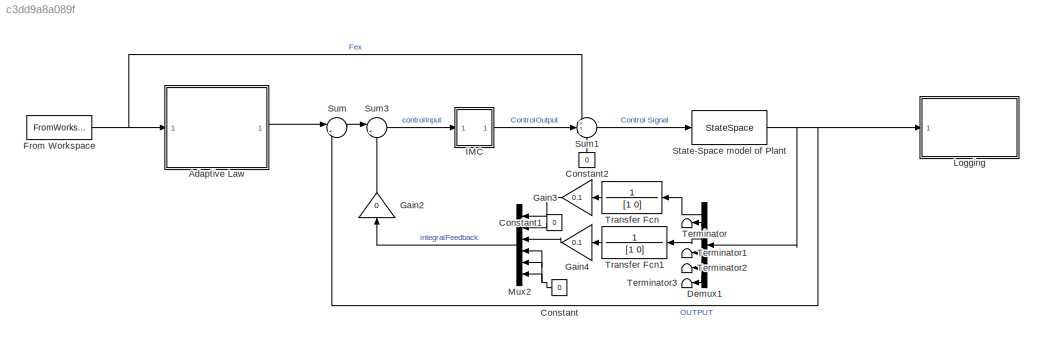
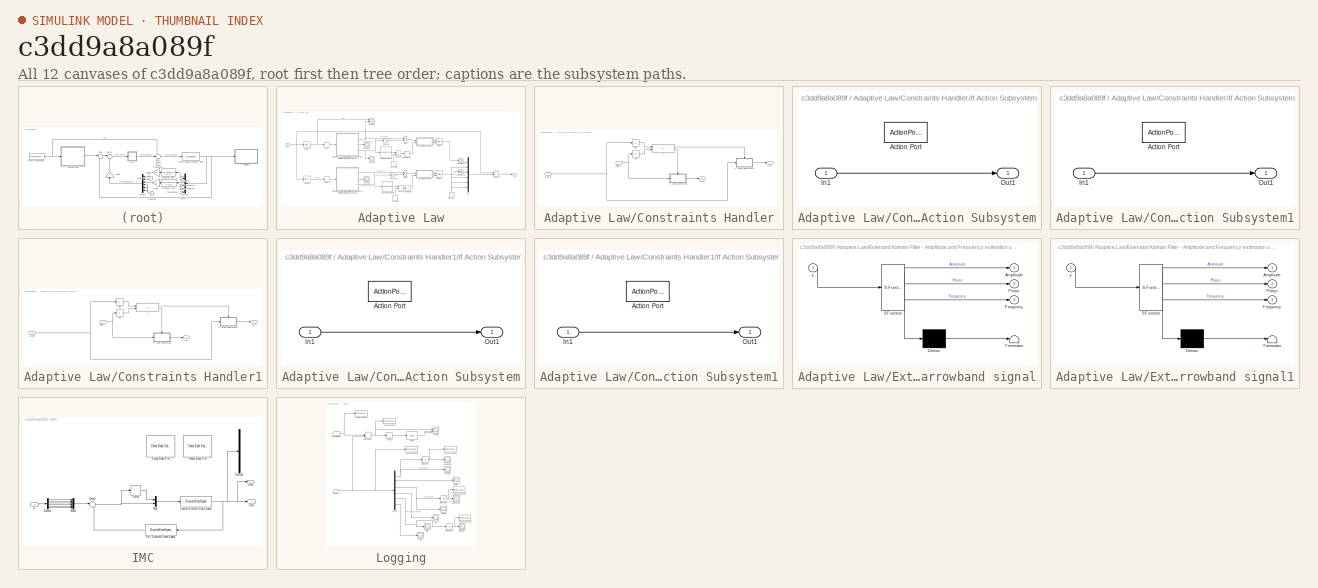
[diagram: thumbnail index - all 12 canvases of the model, root first then tree order]
MODEL slx_c3dd9a8a089f
KIND model
CONFIG AbsTol = auto
CONFIG EnableMultiTasking = off
CONFIG FixedStep = Ts
CONFIG MaxStep = auto
CONFIG MinStep = auto
CONFIG RelTol = 1e-3
CONFIG SampleTimeConstraint = Unconstrained
CONFIG Solver = ode4
CONFIG SolverName = ode4
CONFIG StartTime = 0.0
CONFIG StopTime = 700
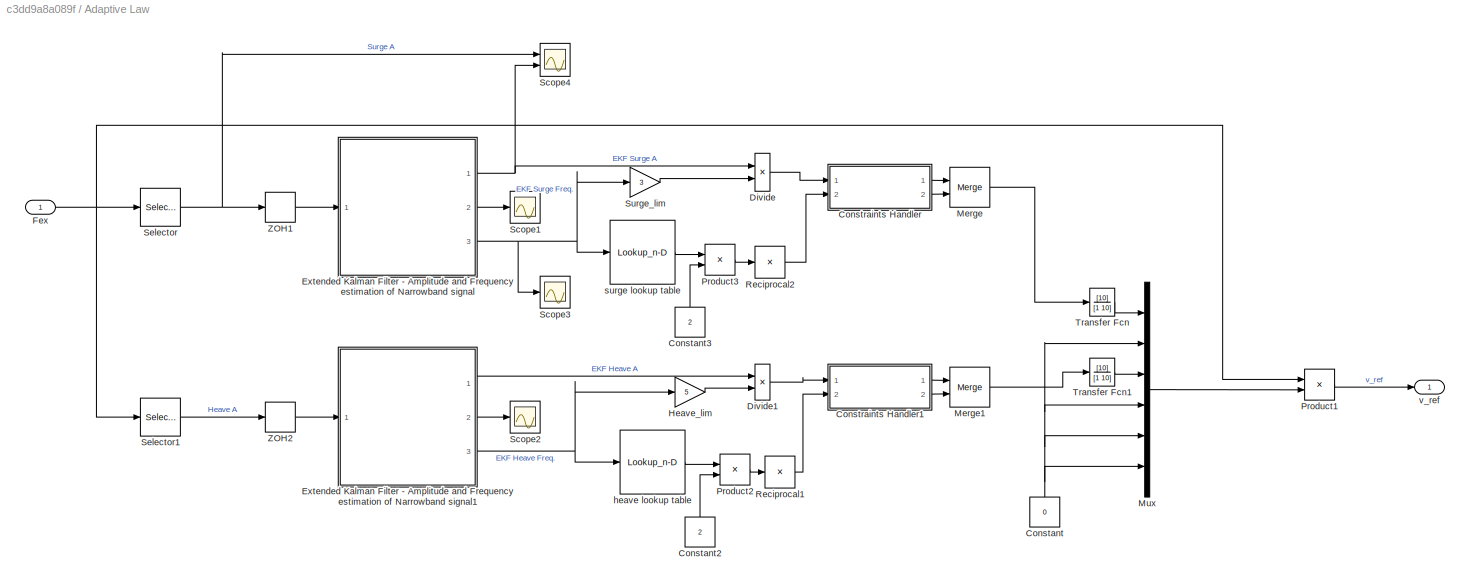
BLOCK [SubSystem] Adaptive Law
  Ports = [1, 1]
  RequestExecContextInheritance = off
BLOCK [Constant] Adaptive Law/Constant
  Value = 0
BLOCK [Constant] Adaptive Law/Constant2
  Value = 2
BLOCK [Constant] Adaptive Law/Constant3
  Value = 2
BLOCK [SubSystem] Adaptive Law/Constraints Handler
  Ports = [2, 2]
  RequestExecContextInheritance = off
BLOCK [Inport] Adaptive Law/Constraints Handler/1//2B(w)
  IconDisplay = Port number
  Port = 2
BLOCK [Abs] Adaptive Law/Constraints Handler/Abs
  SaturateOnIntegerOverflow = off
BLOCK [Abs] Adaptive Law/Constraints Handler/Abs1
  SaturateOnIntegerOverflow = off
BLOCK [If] Adaptive Law/Constraints Handler/If
  IfExpression = u2>u1
  NumInputs = 2
  Ports = [2, 2]
BLOCK [SubSystem] Adaptive Law/Constraints Handler/If Action Subsystem
  Ports = [1, 1, 0, 0, 0, 0, 0, 1]
  RequestExecContextInheritance = off
  TreatAsAtomicUnit = on
BLOCK [ActionPort] Adaptive Law/Constraints Handler/If Action Subsystem/Action Port
  ActionType = else
BLOCK [Inport] Adaptive Law/Constraints Handler/If Action Subsystem/In1
  IconDisplay = Port number
BLOCK [Outport] Adaptive Law/Constraints Handler/If Action Subsystem/Out1
  IconDisplay = Port number
BLOCK [SubSystem] Adaptive Law/Constraints Handler/If Action Subsystem1
  Ports = [1, 1, 0, 0, 0, 0, 0, 1]
  RequestExecContextInheritance = off
  TreatAsAtomicUnit = on
BLOCK [ActionPort] Adaptive Law/Constraints Handler/If Action Subsystem1/Action Port
  ActionType = then
BLOCK [Inport] Adaptive Law/Constraints Handler/If Action Subsystem1/In1
  IconDisplay = Port number
BLOCK [Outport] Adaptive Law/Constraints Handler/If Action Subsystem1/Out1
  IconDisplay = Port number
BLOCK [Outport] Adaptive Law/Constraints Handler/Out1
  IconDisplay = Port number
BLOCK [Outport] Adaptive Law/Constraints Handler/Out2
  IconDisplay = Port number
  Port = 2
BLOCK [Inport] Adaptive Law/Constraints Handler/wXlim//A
  IconDisplay = Port number
BLOCK [SubSystem] Adaptive Law/Constraints Handler1
  Ports = [2, 2]
  RequestExecContextInheritance = off
BLOCK [Inport] Adaptive Law/Constraints Handler1/1//2B(w)
  IconDisplay = Port number
  Port = 2
BLOCK [Abs] Adaptive Law/Constraints Handler1/Abs
  SaturateOnIntegerOverflow = off
BLOCK [Abs] Adaptive Law/Constraints Handler1/Abs1
  SaturateOnIntegerOverflow = off
BLOCK [If] Adaptive Law/Constraints Handler1/If
  IfExpression = u2>u1
  NumInputs = 2
  Ports = [2, 2]
BLOCK [SubSystem] Adaptive Law/Constraints Handler1/If Action Subsystem
  Ports = [1, 1, 0, 0, 0, 0, 0, 1]
  RequestExecContextInheritance = off
  TreatAsAtomicUnit = on
BLOCK [ActionPort] Adaptive Law/Constraints Handler1/If Action Subsystem/Action Port
  ActionType = else
BLOCK [Inport] Adaptive Law/Constraints Handler1/If Action Subsystem/In1
  IconDisplay = Port number
BLOCK [Outport] Adaptive Law/Constraints Handler1/If Action Subsystem/Out1
  IconDisplay = Port number
BLOCK [SubSystem] Adaptive Law/Constraints Handler1/If Action Subsystem1
  Ports = [1, 1, 0, 0, 0, 0, 0, 1]
  RequestExecContextInheritance = off
  TreatAsAtomicUnit = on
BLOCK [ActionPort] Adaptive Law/Constraints Handler1/If Action Subsystem1/Action Port
  ActionType = then
BLOCK [Inport] Adaptive Law/Constraints Handler1/If Action Subsystem1/In1
  IconDisplay = Port number
BLOCK [Outport] Adaptive Law/Constraints Handler1/If Action Subsystem1/Out1
  IconDisplay = Port number
BLOCK [Outport] Adaptive Law/Constraints Handler1/Out1
  IconDisplay = Port number
BLOCK [Outport] Adaptive Law/Constraints Handler1/Out2
  IconDisplay = Port number
  Port = 2
BLOCK [Inport] Adaptive Law/Constraints Handler1/wXlim//A
  IconDisplay = Port number
BLOCK [Product] Adaptive Law/Divide
  InputSameDT = off
  Inputs = /*
  OutDataTypeStr = Inherit: Inherit via internal rule
  Ports = [2, 1]
  RndMeth = Floor
  SaturateOnIntegerOverflow = off
BLOCK [Product] Adaptive Law/Divide1
  InputSameDT = off
  Inputs = /*
  OutDataTypeStr = Inherit: Inherit via internal rule
  Ports = [2, 1]
  RndMeth = Floor
  SaturateOnIntegerOverflow = off
BLOCK [SubSystem] Adaptive Law/Extended Kalman Filter - Amplitude and Frequency estimation of Narrowband signal
  ErrorFcn = Stateflow.Translate.translate
  PermitHierarchicalResolution = ExplicitOnly
  Ports = [1, 3]
  RequestExecContextInheritance = off
  SFBlockType = MATLAB Function
  TreatAsAtomicUnit = on
BLOCK [Demux] Adaptive Law/Extended Kalman Filter - Amplitude and Frequency estimation of Narrowband signal/ Demux 
  Outputs = 1
  Ports = [1, 1]
BLOCK [S-Function] Adaptive Law/Extended Kalman Filter - Amplitude and Frequency estimation of Narrowband signal/ SFunction 
  EnableBusSupport = on
  FunctionName = sf_sfun
  PortCounts = [1 4]
  Ports = [1, 4]
  SFcnIsStateOwnerBlock = off
  SFunctionDeploymentMode = off
  Tag = Stateflow S-Function position_control_model 1
BLOCK [Terminator] Adaptive Law/Extended Kalman Filter - Amplitude and Frequency estimation of Narrowband signal/ Terminator 
BLOCK [Outport] Adaptive Law/Extended Kalman Filter - Amplitude and Frequency estimation of Narrowband signal/Amplitude
  IconDisplay = Port number
BLOCK [Outport] Adaptive Law/Extended Kalman Filter - Amplitude and Frequency estimation of Narrowband signal/Frequency
  IconDisplay = Port number
  Port = 3
BLOCK [Outport] Adaptive Law/Extended Kalman Filter - Amplitude and Frequency estimation of Narrowband signal/Phase
  IconDisplay = Port number
  Port = 2
BLOCK [Inport] Adaptive Law/Extended Kalman Filter - Amplitude and Frequency estimation of Narrowband signal/y
  IconDisplay = Port number
BLOCK [SubSystem] Adaptive Law/Extended Kalman Filter - Amplitude and Frequency estimation of Narrowband signal1
  ErrorFcn = Stateflow.Translate.translate
  PermitHierarchicalResolution = ExplicitOnly
  Ports = [1, 3]
  RequestExecContextInheritance = off
  SFBlockType = MATLAB Function
  TreatAsAtomicUnit = on
BLOCK [Demux] Adaptive Law/Extended Kalman Filter - Amplitude and Frequency estimation of Narrowband signal1/ Demux 
  Outputs = 1
  Ports = [1, 1]
BLOCK [S-Function] Adaptive Law/Extended Kalman Filter - Amplitude and Frequency estimation of Narrowband signal1/ SFunction 
  EnableBusSupport = on
  FunctionName = sf_sfun
  PortCounts = [1 4]
  Ports = [1, 4]
  SFcnIsStateOwnerBlock = off
  SFunctionDeploymentMode = off
  Tag = Stateflow S-Function position_control_model 2
BLOCK [Terminator] Adaptive Law/Extended Kalman Filter - Amplitude and Frequency estimation of Narrowband signal1/ Terminator 
BLOCK [Outport] Adaptive Law/Extended Kalman Filter - Amplitude and Frequency estimation of Narrowband signal1/Amplitude
  IconDisplay = Port number
BLOCK [Outport] Adaptive Law/Extended Kalman Filter - Amplitude and Frequency estimation of Narrowband signal1/Frequency
  IconDisplay = Port number
  Port = 3
BLOCK [Outport] Adaptive Law/Extended Kalman Filter - Amplitude and Frequency estimation of Narrowband signal1/Phase
  IconDisplay = Port number
  Port = 2
BLOCK [Inport] Adaptive Law/Extended Kalman Filter - Amplitude and Frequency estimation of Narrowband signal1/y
  IconDisplay = Port number
BLOCK [Inport] Adaptive Law/Fex
  IconDisplay = Port number
BLOCK [Gain] Adaptive Law/Heave_lim
  Gain = 5
  OutDataTypeStr = Inherit: Inherit via internal rule
  ParamDataTypeStr = Inherit: Inherit via internal rule
  SaturateOnIntegerOverflow = off
BLOCK [Merge] Adaptive Law/Merge
  Ports = [2, 1]
BLOCK [Merge] Adaptive Law/Merge1
  Ports = [2, 1]
BLOCK [Mux] Adaptive Law/Mux
  DisplayOption = bar
  Inputs = 6
  Ports = [6, 1]
BLOCK [Product] Adaptive Law/Product1
  InputSameDT = off
  OutDataTypeStr = Inherit: Inherit via internal rule
  Ports = [2, 1]
  RndMeth = Floor
  SaturateOnIntegerOverflow = off
BLOCK [Product] Adaptive Law/Product2
  InputSameDT = off
  OutDataTypeStr = Inherit: Inherit via internal rule
  Ports = [2, 1]
  RndMeth = Floor
  SaturateOnIntegerOverflow = off
BLOCK [Product] Adaptive Law/Product3
  InputSameDT = off
  OutDataTypeStr = Inherit: Inherit via internal rule
  Ports = [2, 1]
  RndMeth = Floor
  SaturateOnIntegerOverflow = off
BLOCK [Product] Adaptive Law/Reciprocal1
  InputSameDT = off
  Inputs = /
  OutDataTypeStr = Inherit: Inherit via internal rule
  Ports = [1, 1]
  RndMeth = Floor
  SaturateOnIntegerOverflow = off
BLOCK [Product] Adaptive Law/Reciprocal2
  InputSameDT = off
  Inputs = /
  OutDataTypeStr = Inherit: Inherit via internal rule
  Ports = [1, 1]
  RndMeth = Floor
  SaturateOnIntegerOverflow = off
BLOCK [Scope] Adaptive Law/Scope1
  Floating = off
  NumInputPorts = 1
  Ports = [1]
  ScopeSpecificationString = Simulink.scopes.TimeScopeBlockCfg('CurrentConfiguration', extmgr.ConfigurationSet(extmgr.Configuration('Core','General UI',true),extmgr.Configuration('Core','Source UI',true),extmgr.Configuration('Sources','WiredSimulink',true,'DataLoggingVariableName','ScopeData1','DataLoggingSaveFormat','StructureWithTime','DataLoggingDecimation','1','DataLoggingDecimateData',true),extmgr.Configuration('Visuals'...<+1864ch>
BLOCK [Scope] Adaptive Law/Scope2
  Floating = off
  NumInputPorts = 1
  Ports = [1]
  ScopeSpecificationString = Simulink.scopes.TimeScopeBlockCfg('CurrentConfiguration', extmgr.ConfigurationSet(extmgr.Configuration('Core','General UI',true),extmgr.Configuration('Core','Source UI',true),extmgr.Configuration('Sources','WiredSimulink',true,'DataLoggingVariableName','ScopeData1','DataLoggingSaveFormat','StructureWithTime','DataLoggingDecimation','1','DataLoggingDecimateData',true),extmgr.Configuration('Visuals'...<+1870ch>
BLOCK [Scope] Adaptive Law/Scope3
  Floating = off
  NumInputPorts = 1
  Ports = [1]
  ScopeSpecificationString = Simulink.scopes.TimeScopeBlockCfg('CurrentConfiguration', extmgr.ConfigurationSet(extmgr.Configuration('Core','General UI',true),extmgr.Configuration('Core','Source UI',true),extmgr.Configuration('Sources','WiredSimulink',true,'DataLoggingVariableName','ScopeData1','DataLoggingSaveFormat','StructureWithTime','DataLoggingDecimation','1','DataLoggingDecimateData',true),extmgr.Configuration('Visuals'...<+1747ch>
BLOCK [Scope] Adaptive Law/Scope4
  Floating = off
  NumInputPorts = 2
  Ports = [2]
  ScopeSpecificationString = Simulink.scopes.TimeScopeBlockCfg('CurrentConfiguration', extmgr.ConfigurationSet(extmgr.Configuration('Core','General UI',true),extmgr.Configuration('Core','Source UI',true),extmgr.Configuration('Sources','WiredSimulink',true,'DataLoggingVariableName','ScopeData2','DataLoggingSaveFormat','StructureWithTime','DataLoggingDecimation','1','DataLoggingDecimateData',true),extmgr.Configuration('Visuals'...<+1803ch>
BLOCK [Selector] Adaptive Law/Selector
  IndexOptions = Index vector (dialog)
  Indices = 1
  InputPortWidth = 6
  OutputSizes = 1
  Ports = [1, 1]
BLOCK [Selector] Adaptive Law/Selector1
  IndexOptions = Index vector (dialog)
  Indices = 3
  InputPortWidth = 6
  OutputSizes = 1
  Ports = [1, 1]
BLOCK [Gain] Adaptive Law/Surge_lim
  Gain = 3
  OutDataTypeStr = Inherit: Inherit via internal rule
  ParamDataTypeStr = Inherit: Inherit via internal rule
  SaturateOnIntegerOverflow = off
BLOCK [TransferFcn] Adaptive Law/Transfer Fcn
  Denominator = [1 10]
  Numerator = [10]
BLOCK [TransferFcn] Adaptive Law/Transfer Fcn1
  Denominator = [1 10]
  Numerator = [10]
BLOCK [ZeroOrderHold] Adaptive Law/ZOH1
  SampleTime = Ts
BLOCK [ZeroOrderHold] Adaptive Law/ZOH2
  SampleTime = Ts
BLOCK [Lookup_n-D] Adaptive Law/heave lookup table
  BreakpointsForDimension1 = heave.freq
  InternalRulePriority = Speed
  NumberOfTableDimensions = 1
  Ports = [1, 1]
  RndMeth = Simplest
  Table = heave.amp
BLOCK [Lookup_n-D] Adaptive Law/surge lookup table
  BreakpointsForDimension1 = surge.freq
  InternalRulePriority = Speed
  NumberOfTableDimensions = 1
  Ports = [1, 1]
  RndMeth = Simplest
  Table = surge.amp
BLOCK [Outport] Adaptive Law/v_ref
  IconDisplay = Port number
BLOCK [Constant] Constant
  Value = 0
BLOCK [Constant] Constant1
  Value = 0
BLOCK [Constant] Constant2
  Value = 0
BLOCK [Demux] Demux1
  DisplayOption = bar
  Outputs = 6
  Ports = [1, 6]
BLOCK [FromWorkspace] From Workspace
  SampleTime = 0
  VariableName = fex
  ZeroCross = on
BLOCK [Gain] Gain2
  Gain = 0
  OutDataTypeStr = Inherit: Inherit via internal rule
  ParamDataTypeStr = Inherit: Inherit via internal rule
  SaturateOnIntegerOverflow = off
BLOCK [Gain] Gain3
  Gain = 0.1
  OutDataTypeStr = Inherit: Inherit via internal rule
  ParamDataTypeStr = Inherit: Inherit via internal rule
  SaturateOnIntegerOverflow = off
BLOCK [Gain] Gain4
  Gain = 0.1
  OutDataTypeStr = Inherit: Inherit via internal rule
  ParamDataTypeStr = Inherit: Inherit via internal rule
  SaturateOnIntegerOverflow = off
BLOCK [SubSystem] IMC
  Ports = [1, 1]
  RequestExecContextInheritance = off
BLOCK [Delay] IMC/Delay
  DelayLength = 1
  InitialCondition = 0
  InputPortMap = u0
  Ports = [1, 1]
BLOCK [Demux] IMC/Demux
  DisplayOption = bar
  Outputs = 6
  Ports = [1, 6]
BLOCK [Demux] IMC/Demux1
  DisplayOption = bar
  Outputs = 6
  Ports = [1, 6]
BLOCK [DiscreteStateSpace] IMC/Full Discrete State-Space
  A = SS_discrete.A
  B = SS_discrete.B
  C = SS_discrete.C
  D = SS_discrete.D
  SampleTime = -1
BLOCK [Goto] IMC/Goto
  TagVisibility = global
BLOCK [Reference] IMC/Heave Bode Plot  REF=slctrlblks/Model Verification/Check Bode 
Characteristics
  InstantiateOnLoad = on
  Ports = []
  SourceBlock = slctrlblks/Model Verification/Check Bode \nCharacteristics
  SourceProductBaseCode = SD
  SourceProductName = Simulink Control Design
  SourceType = Checks_Bode
BLOCK [DiscreteStateSpace] IMC/Inverse Discrete State-Space
  A = SS_inverse.A
  B = SS_inverse.B
  C = SS_inverse.C
  D = SS_inverse.D
  SampleTime = -1
BLOCK [Mux] IMC/Mux
  DisplayOption = bar
  Inputs = 2
  Ports = [2, 1]
BLOCK [Mux] IMC/Mux1
  DisplayOption = bar
  Inputs = 6
  Ports = [6, 1]
BLOCK [Outport] IMC/Out2
  IconDisplay = Port number
BLOCK [Sum] IMC/Sum3
  IconShape = round
  InputSameDT = off
  Inputs = |++
  OutDataTypeStr = Inherit: Inherit via internal rule
  Ports = [2, 1]
  SaturateOnIntegerOverflow = off
BLOCK [Reference] IMC/Surge Bode Plot  REF=slctrlblks/Model Verification/Check Bode 
Characteristics
  InstantiateOnLoad = on
  Ports = []
  SourceBlock = slctrlblks/Model Verification/Check Bode \nCharacteristics
  SourceProductBaseCode = SD
  SourceProductName = Simulink Control Design
  SourceType = Checks_Bode
BLOCK [Inport] IMC/u
  IconDisplay = Port number
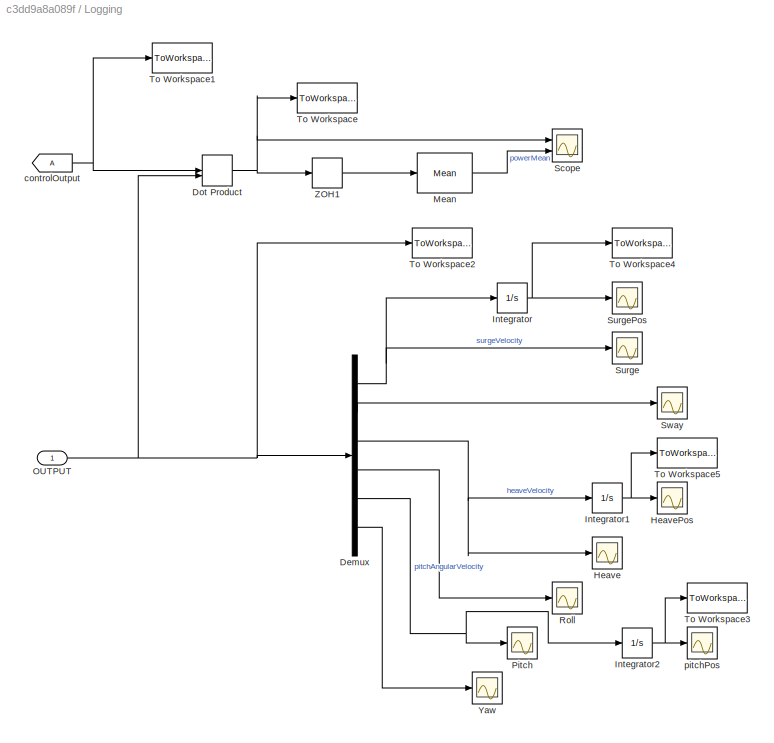
BLOCK [SubSystem] Logging
  Ports = [1]
  RequestExecContextInheritance = off
BLOCK [Demux] Logging/Demux
  DisplayOption = bar
  Outputs = 6
  Ports = [1, 6]
BLOCK [DotProduct] Logging/Dot Product
  OutDataTypeStr = Inherit: Inherit via internal rule
BLOCK [Scope] Logging/Heave
  Floating = off
  NumInputPorts = 1
  Ports = [1]
  ScopeSpecificationString = Simulink.scopes.TimeScopeBlockCfg('CurrentConfiguration', extmgr.ConfigurationSet(extmgr.Configuration('Core','General UI',true),extmgr.Configuration('Core','Source UI',true),extmgr.Configuration('Sources','WiredSimulink',true,'DataLoggingVariableName','ScopeData1'),extmgr.Configuration('Visuals','Time Domain',true,'SerializedDisplays',{struct('MinYLimReal','-2.78159','MaxYLimReal','2.11477','YLab...<+1453ch>
BLOCK [Scope] Logging/HeavePos
  Floating = off
  NumInputPorts = 1
  Ports = [1]
  ScopeSpecificationString = Simulink.scopes.TimeScopeBlockCfg('CurrentConfiguration', extmgr.ConfigurationSet(extmgr.Configuration('Core','General UI',true),extmgr.Configuration('Core','Source UI',true),extmgr.Configuration('Sources','WiredSimulink',true,'DataLoggingVariableName','ScopeData1'),extmgr.Configuration('Visuals','Time Domain',true,'SerializedDisplays',{struct('MinYLimReal','-11.39818','MaxYLimReal','6.80474','YLa...<+1453ch>
BLOCK [Integrator] Logging/Integrator
  Ports = [1, 1]
BLOCK [Integrator] Logging/Integrator1
  Ports = [1, 1]
BLOCK [Integrator] Logging/Integrator2
  Ports = [1, 1]
BLOCK [Reference] Logging/Mean  REF=dspstat3/Mean
  Ports = [1, 1]
  SourceBlock = dspstat3/Mean
  SourceProductBaseCode = DS
  SourceProductName = DSP System Toolbox
  SourceType = Mean
  UserDataPersistent = on
BLOCK [Inport] Logging/OUTPUT
  IconDisplay = Port number
BLOCK [Scope] Logging/Pitch
  Floating = off
  NumInputPorts = 1
  Ports = [1]
  ScopeSpecificationString = Simulink.scopes.TimeScopeBlockCfg('CurrentConfiguration', extmgr.ConfigurationSet(extmgr.Configuration('Core','General UI',true),extmgr.Configuration('Core','Source UI',true),extmgr.Configuration('Sources','WiredSimulink',true,'DataLoggingVariableName','ScopeData2'),extmgr.Configuration('Visuals','Time Domain',true,'SerializedDisplays',{struct('MinYLimReal','-0.00595','MaxYLimReal','0.00682','YLab...<+1423ch>
BLOCK [Scope] Logging/Roll
  Floating = off
  NumInputPorts = 1
  Ports = [1]
  ScopeSpecificationString = Simulink.scopes.TimeScopeBlockCfg('CurrentConfiguration', extmgr.ConfigurationSet(extmgr.Configuration('Core','General UI',true),extmgr.Configuration('Core','Source UI',true),extmgr.Configuration('Sources','WiredSimulink',true,'DataLoggingVariableName','ScopeData2'),extmgr.Configuration('Visuals','Time Domain',true,'SerializedDisplays',{struct('MinYLimReal','-0.01689','MaxYLimReal','0.01142','YLab...<+1385ch>
BLOCK [Scope] Logging/Scope
  Floating = off
  NumInputPorts = 2
  Ports = [2]
  ScopeSpecificationString = Simulink.scopes.TimeScopeBlockCfg('CurrentConfiguration', extmgr.ConfigurationSet(extmgr.Configuration('Core','General UI',true),extmgr.Configuration('Core','Source UI',true),extmgr.Configuration('Sources','WiredSimulink',true,'DataLoggingVariableName','ScopeData1'),extmgr.Configuration('Visuals','Time Domain',true,'SerializedDisplays',{struct('MinYLimReal','-26674770.77183','MaxYLimReal','2283770...<+1513ch>
BLOCK [Scope] Logging/Surge
  Floating = off
  NumInputPorts = 1
  Ports = [1]
  ScopeSpecificationString = Simulink.scopes.TimeScopeBlockCfg('CurrentConfiguration', extmgr.ConfigurationSet(extmgr.Configuration('Core','General UI',true),extmgr.Configuration('Core','Source UI',true),extmgr.Configuration('Sources','WiredSimulink',true),extmgr.Configuration('Visuals','Time Domain',true,'SerializedDisplays',{struct('MinYLimReal','-0.02205','MaxYLimReal','0.05201','YLabelReal','','MinYLimMag','0.00000','MaxY...<+1410ch>
BLOCK [Scope] Logging/SurgePos
  Floating = off
  NumInputPorts = 1
  Ports = [1]
  ScopeSpecificationString = Simulink.scopes.TimeScopeBlockCfg('CurrentConfiguration', extmgr.ConfigurationSet(extmgr.Configuration('Core','General UI',true),extmgr.Configuration('Core','Source UI',true),extmgr.Configuration('Sources','WiredSimulink',true,'DataLoggingVariableName','ScopeData2'),extmgr.Configuration('Visuals','Time Domain',true,'SerializedDisplays',{struct('MinYLimReal','-16.06132','MaxYLimReal','22.99347','YL...<+1454ch>
BLOCK [Scope] Logging/Sway
  Floating = off
  NumInputPorts = 1
  Ports = [1]
  ScopeSpecificationString = Simulink.scopes.TimeScopeBlockCfg('CurrentConfiguration', extmgr.ConfigurationSet(extmgr.Configuration('Core','General UI',true),extmgr.Configuration('Core','Source UI',true),extmgr.Configuration('Sources','WiredSimulink',true,'DataLoggingVariableName','ScopeData1'),extmgr.Configuration('Visuals','Time Domain',true,'SerializedDisplays',{struct('MinYLimReal','-0.44361','MaxYLimReal','0.59812','YLab...<+1385ch>
BLOCK [ToWorkspace] Logging/To Workspace
  FixptAsFi = on
  MaxDataPoints = inf
  Ports = [1]
  SampleTime = -1
  Save2DSignal = 3-D array (concatenate along third dimension)
  SaveFormat = Timeseries
  VariableName = totalPower
BLOCK [ToWorkspace] Logging/To Workspace1
  FixptAsFi = on
  MaxDataPoints = inf
  Ports = [1]
  SampleTime = -1
  Save2DSignal = 3-D array (concatenate along third dimension)
  SaveFormat = Timeseries
  VariableName = controlSignal
BLOCK [ToWorkspace] Logging/To Workspace2
  FixptAsFi = on
  MaxDataPoints = inf
  Ports = [1]
  SampleTime = -1
  Save2DSignal = 3-D array (concatenate along third dimension)
  SaveFormat = Timeseries
  VariableName = outputSignal
BLOCK [ToWorkspace] Logging/To Workspace3
  FixptAsFi = on
  MaxDataPoints = inf
  Ports = [1]
  SampleTime = -1
  Save2DSignal = 3-D array (concatenate along third dimension)
  SaveFormat = Timeseries
  VariableName = pitchAngle
BLOCK [ToWorkspace] Logging/To Workspace4
  FixptAsFi = on
  MaxDataPoints = inf
  Ports = [1]
  SampleTime = -1
  Save2DSignal = 3-D array (concatenate along third dimension)
  SaveFormat = Timeseries
  VariableName = surgePos
BLOCK [ToWorkspace] Logging/To Workspace5
  FixptAsFi = on
  MaxDataPoints = inf
  Ports = [1]
  SampleTime = -1
  Save2DSignal = 3-D array (concatenate along third dimension)
  SaveFormat = Timeseries
  VariableName = heavePos
BLOCK [Scope] Logging/Yaw
  Floating = off
  NumInputPorts = 1
  Ports = [1]
  ScopeSpecificationString = Simulink.scopes.TimeScopeBlockCfg('CurrentConfiguration', extmgr.ConfigurationSet(extmgr.Configuration('Core','General UI',true),extmgr.Configuration('Core','Source UI',true),extmgr.Configuration('Sources','WiredSimulink',true,'DataLoggingVariableName','ScopeData3'),extmgr.Configuration('Visuals','Time Domain',true,'SerializedDisplays',{struct('MinYLimReal','-0.01023','MaxYLimReal','0.01454','YLab...<+1385ch>
BLOCK [ZeroOrderHold] Logging/ZOH1
  SampleTime = Ts
BLOCK [From] Logging/controlOutput
  TagVisibility = global
BLOCK [Scope] Logging/pitchPos
  Floating = off
  NumInputPorts = 1
  Ports = [1]
  ScopeSpecificationString = Simulink.scopes.TimeScopeBlockCfg('CurrentConfiguration', extmgr.ConfigurationSet(extmgr.Configuration('Core','General UI',true),extmgr.Configuration('Core','Source UI',true),extmgr.Configuration('Sources','WiredSimulink',true,'DataLoggingVariableName','ScopeData1'),extmgr.Configuration('Visuals','Time Domain',true,'SerializedDisplays',{struct('MinYLimReal','-0.02562','MaxYLimReal','0.02491','YLab...<+1447ch>
BLOCK [Mux] Mux2
  DisplayOption = bar
  Inputs = 6
  Ports = [6, 1]
BLOCK [StateSpace] State-Space model of Plant
  A = SS_full.A
  B = SS_full.B
  C = SS_full.C
  D = SS_full.D
  InitialCondition = 0
  Ports = [1, 1]
BLOCK [Sum] Sum
  IconShape = round
  InputSameDT = off
  Inputs = |+-
  OutDataTypeStr = Inherit: Inherit via internal rule
  Ports = [2, 1]
  SaturateOnIntegerOverflow = off
BLOCK [Sum] Sum1
  IconShape = round
  InputSameDT = off
  Inputs = ++-
  OutDataTypeStr = Inherit: Inherit via internal rule
  Ports = [3, 1]
  SaturateOnIntegerOverflow = off
BLOCK [Sum] Sum3
  IconShape = round
  InputSameDT = off
  Inputs = |+-
  OutDataTypeStr = Inherit: Inherit via internal rule
  Ports = [2, 1]
  SaturateOnIntegerOverflow = off
BLOCK [Terminator] Terminator
BLOCK [Terminator] Terminator1
BLOCK [Terminator] Terminator2
BLOCK [Terminator] Terminator3
BLOCK [TransferFcn] Transfer Fcn
  Denominator = [1 0]
  Numerator = 1
BLOCK [TransferFcn] Transfer Fcn1
  Denominator = [1 0]
  Numerator = 1
LINE Adaptive Law/Constant2:1 -> Adaptive Law/Product2:2
LINE Adaptive Law/Constant3:1 -> Adaptive Law/Product3:2
NET Adaptive Law/Constant:1 -> Adaptive Law/Mux:2, Adaptive Law/Mux:4, Adaptive Law/Mux:5, Adaptive Law/Mux:6
NET Adaptive Law/Constraints Handler/1//2B(w):1 -> Adaptive Law/Constraints Handler/Abs1:1, Adaptive Law/Constraints Handler/If Action Subsystem1:1
LINE Adaptive Law/Constraints Handler/Abs1:1 -> Adaptive Law/Constraints Handler/If:1
LINE Adaptive Law/Constraints Handler/Abs:1 -> Adaptive Law/Constraints Handler/If:2
LINE Adaptive Law/Constraints Handler/If Action Subsystem/In1:1 -> Adaptive Law/Constraints Handler/If Action Subsystem/Out1:1
LINE Adaptive Law/Constraints Handler/If Action Subsystem1/In1:1 -> Adaptive Law/Constraints Handler/If Action Subsystem1/Out1:1
LINE Adaptive Law/Constraints Handler/If Action Subsystem1:1 -> Adaptive Law/Constraints Handler/Out1:1
LINE Adaptive Law/Constraints Handler/If Action Subsystem:1 -> Adaptive Law/Constraints Handler/Out2:1
LINE Adaptive Law/Constraints Handler/If:1 -> Adaptive Law/Constraints Handler/If Action Subsystem1:ifaction
LINE Adaptive Law/Constraints Handler/If:2 -> Adaptive Law/Constraints Handler/If Action Subsystem:ifaction
NET Adaptive Law/Constraints Handler/wXlim//A:1 -> Adaptive Law/Constraints Handler/Abs:1, Adaptive Law/Constraints Handler/If Action Subsystem:1
NET Adaptive Law/Constraints Handler1/1//2B(w):1 -> Adaptive Law/Constraints Handler1/Abs1:1, Adaptive Law/Constraints Handler1/If Action Subsystem1:1
LINE Adaptive Law/Constraints Handler1/Abs1:1 -> Adaptive Law/Constraints Handler1/If:1
LINE Adaptive Law/Constraints Handler1/Abs:1 -> Adaptive Law/Constraints Handler1/If:2
LINE Adaptive Law/Constraints Handler1/If Action Subsystem/In1:1 -> Adaptive Law/Constraints Handler1/If Action Subsystem/Out1:1
LINE Adaptive Law/Constraints Handler1/If Action Subsystem1/In1:1 -> Adaptive Law/Constraints Handler1/If Action Subsystem1/Out1:1
LINE Adaptive Law/Constraints Handler1/If Action Subsystem1:1 -> Adaptive Law/Constraints Handler1/Out1:1
LINE Adaptive Law/Constraints Handler1/If Action Subsystem:1 -> Adaptive Law/Constraints Handler1/Out2:1
LINE Adaptive Law/Constraints Handler1/If:1 -> Adaptive Law/Constraints Handler1/If Action Subsystem1:ifaction
LINE Adaptive Law/Constraints Handler1/If:2 -> Adaptive Law/Constraints Handler1/If Action Subsystem:ifaction
NET Adaptive Law/Constraints Handler1/wXlim//A:1 -> Adaptive Law/Constraints Handler1/Abs:1, Adaptive Law/Constraints Handler1/If Action Subsystem:1
LINE Adaptive Law/Constraints Handler1:1 -> Adaptive Law/Merge1:1
LINE Adaptive Law/Constraints Handler1:2 -> Adaptive Law/Merge1:2
LINE Adaptive Law/Constraints Handler:1 -> Adaptive Law/Merge:1
LINE Adaptive Law/Constraints Handler:2 -> Adaptive Law/Merge:2
LINE Adaptive Law/Divide1:1 -> Adaptive Law/Constraints Handler1:1
LINE Adaptive Law/Divide:1 -> Adaptive Law/Constraints Handler:1
LINE Adaptive Law/Extended Kalman Filter - Amplitude and Frequency estimation of Narrowband signal1:1 -> Adaptive Law/Divide1:1
LINE Adaptive Law/Extended Kalman Filter - Amplitude and Frequency estimation of Narrowband signal1:2 -> Adaptive Law/Scope2:1
NET Adaptive Law/Extended Kalman Filter - Amplitude and Frequency estimation of Narrowband signal1:3 -> Adaptive Law/Heave_lim:1, Adaptive Law/heave lookup table:1
NET Adaptive Law/Extended Kalman Filter - Amplitude and Frequency estimation of Narrowband signal:1 -> Adaptive Law/Divide:1, Adaptive Law/Scope4:2
LINE Adaptive Law/Extended Kalman Filter - Amplitude and Frequency estimation of Narrowband signal:2 -> Adaptive Law/Scope1:1
NET Adaptive Law/Extended Kalman Filter - Amplitude and Frequency estimation of Narrowband signal:3 -> Adaptive Law/Scope3:1, Adaptive Law/Surge_lim:1, Adaptive Law/surge lookup table:1
NET Adaptive Law/Fex:1 -> Adaptive Law/Product1:1, Adaptive Law/Selector1:1, Adaptive Law/Selector:1
LINE Adaptive Law/Heave_lim:1 -> Adaptive Law/Divide1:2
LINE Adaptive Law/Merge1:1 -> Adaptive Law/Transfer Fcn1:1
LINE Adaptive Law/Merge:1 -> Adaptive Law/Transfer Fcn:1
LINE Adaptive Law/Mux:1 -> Adaptive Law/Product1:2
LINE Adaptive Law/Product1:1 -> Adaptive Law/v_ref:1
LINE Adaptive Law/Product2:1 -> Adaptive Law/Reciprocal1:1
LINE Adaptive Law/Product3:1 -> Adaptive Law/Reciprocal2:1
LINE Adaptive Law/Reciprocal1:1 -> Adaptive Law/Constraints Handler1:2
LINE Adaptive Law/Reciprocal2:1 -> Adaptive Law/Constraints Handler:2
LINE Adaptive Law/Selector1:1 -> Adaptive Law/ZOH2:1
NET Adaptive Law/Selector:1 -> Adaptive Law/Scope4:1, Adaptive Law/ZOH1:1
LINE Adaptive Law/Surge_lim:1 -> Adaptive Law/Divide:2
LINE Adaptive Law/Transfer Fcn1:1 -> Adaptive Law/Mux:3
LINE Adaptive Law/Transfer Fcn:1 -> Adaptive Law/Mux:1
LINE Adaptive Law/ZOH1:1 -> Adaptive Law/Extended Kalman Filter - Amplitude and Frequency estimation of Narrowband signal:1
LINE Adaptive Law/ZOH2:1 -> Adaptive Law/Extended Kalman Filter - Amplitude and Frequency estimation of Narrowband signal1:1
LINE Adaptive Law/heave lookup table:1 -> Adaptive Law/Product2:1
LINE Adaptive Law/surge lookup table:1 -> Adaptive Law/Product3:1
LINE Adaptive Law:1 -> Sum:1
LINE Constant1:1 -> Mux2:2
LINE Constant2:1 -> Sum1:3
NET Constant:1 -> Mux2:4, Mux2:5, Mux2:6
LINE Demux1:1 -> Transfer Fcn:1
LINE Demux1:2 -> Terminator:1
LINE Demux1:3 -> Transfer Fcn1:1
LINE Demux1:4 -> Terminator1:1
LINE Demux1:5 -> Terminator2:1
LINE Demux1:6 -> Terminator3:1
NET From Workspace:1 -> Adaptive Law:1, Sum1:1
LINE Gain2:1 -> Sum3:2
LINE Gain3:1 -> Mux2:1
LINE Gain4:1 -> Mux2:3
LINE IMC/Delay:1 -> IMC/Mux:1
LINE IMC/Demux:1 -> IMC/Mux1:1
LINE IMC/Demux:2 -> IMC/Mux1:2
LINE IMC/Demux:3 -> IMC/Mux1:3
LINE IMC/Demux:4 -> IMC/Mux1:4
LINE IMC/Demux:5 -> IMC/Mux1:5
LINE IMC/Demux:6 -> IMC/Mux1:6
LINE IMC/Full Discrete State-Space:1 -> IMC/Sum3:2
NET IMC/Inverse Discrete State-Space:1 -> IMC/Demux1:1, IMC/Full Discrete State-Space:1, IMC/Goto:1, IMC/Out2:1
LINE IMC/Mux1:1 -> IMC/Sum3:1
LINE IMC/Mux:1 -> IMC/Inverse Discrete State-Space:1
NET IMC/Sum3:1 -> IMC/Delay:1, IMC/Mux:2
LINE IMC/u:1 -> IMC/Demux:1
LINE IMC:1 -> Sum1:2
NET Logging/Demux:1 -> Logging/Integrator:1, Logging/Surge:1
LINE Logging/Demux:2 -> Logging/Sway:1
NET Logging/Demux:3 -> Logging/Heave:1, Logging/Integrator1:1
LINE Logging/Demux:4 -> Logging/Roll:1
NET Logging/Demux:5 -> Logging/Integrator2:1, Logging/Pitch:1
LINE Logging/Demux:6 -> Logging/Yaw:1
NET Logging/Dot Product:1 -> Logging/Scope:1, Logging/To Workspace:1, Logging/ZOH1:1
NET Logging/Integrator1:1 -> Logging/HeavePos:1, Logging/To Workspace5:1
NET Logging/Integrator2:1 -> Logging/To Workspace3:1, Logging/pitchPos:1
NET Logging/Integrator:1 -> Logging/SurgePos:1, Logging/To Workspace4:1
LINE Logging/Mean:1 -> Logging/Scope:2
NET Logging/OUTPUT:1 -> Logging/Demux:1, Logging/Dot Product:2, Logging/To Workspace2:1
LINE Logging/ZOH1:1 -> Logging/Mean:1
NET Logging/controlOutput:1 -> Logging/Dot Product:1, Logging/To Workspace1:1
LINE Mux2:1 -> Gain2:1
NET State-Space model of Plant:1 -> Demux1:1, Logging:1, Sum:2
LINE Sum1:1 -> State-Space model of Plant:1
LINE Sum3:1 -> IMC:1
LINE Sum:1 -> Sum3:1
LINE Transfer Fcn1:1 -> Gain4:1
LINE Transfer Fcn:1 -> Gain3:1
note: NET lines group one-source signal fan-out (src -> all destinations, sorted); 1:1 wires keep LINE
CHART Adaptive Law/Extended Kalman Filter - Amplitude
and Frequency estimation of
Narrowband signal states=1 transitions=1
  STATE_LABEL 'eML_blk_kernel()'
  STATE_LABEL "SCRIPT:\nfunction [Amplitude, Phase, Frequency]   = EKF_narrowband(y)\ncoder.extrinsic('evalin')\n% Initialization\npersistent P;\npersistent x;\n\ndt = 0; %edit this to match your timestep\ndt = evalin('base','Ts');\nif isempty(P)\n    x = [0 0 0.1]';       %state estimate\n    P = diag([1e0 1e0 1e0]);    %Covariance matrix\nend\n\n%%%%%%%%%%%From Fusco thesis%%%%%%%%%%%%%%%%%%%%%\n%%%State vector X = [a theta ...<+808ch>"
CHART Adaptive Law/Extended Kalman Filter - Amplitude
and Frequency estimation of
Narrowband signal1 states=1 transitions=1
  STATE_LABEL 'eML_blk_kernel()'
  STATE_LABEL "SCRIPT:\nfunction [Amplitude, Phase, Frequency]   = EKF_narrowband(y)\ncoder.extrinsic('evalin')\n% Initialization\npersistent P;\npersistent x;\n\ndt = 0; %edit this to match your timestep\ndt = evalin('base','Ts');\nif isempty(P)\n    x = [0 0 0.1]';       %state estimate\n    P = diag([1e0 1e0 1e0]);    %Covariance matrix\nend\n\n%%%%%%%%%%%From Fusco thesis%%%%%%%%%%%%%%%%%%%%%\n%%%State vector X = [a theta ...<+808ch>"
